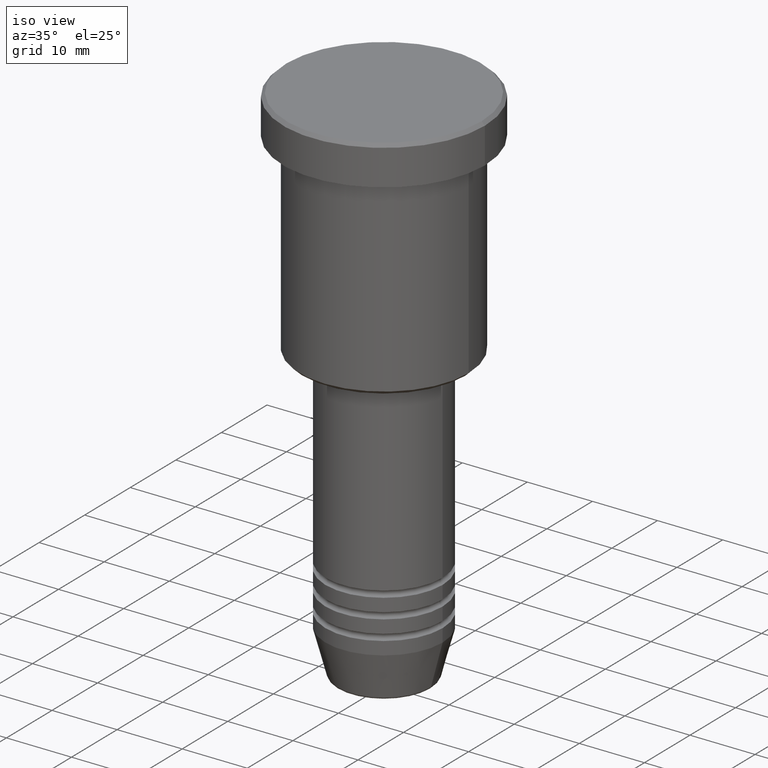
[diagram: clean part render]
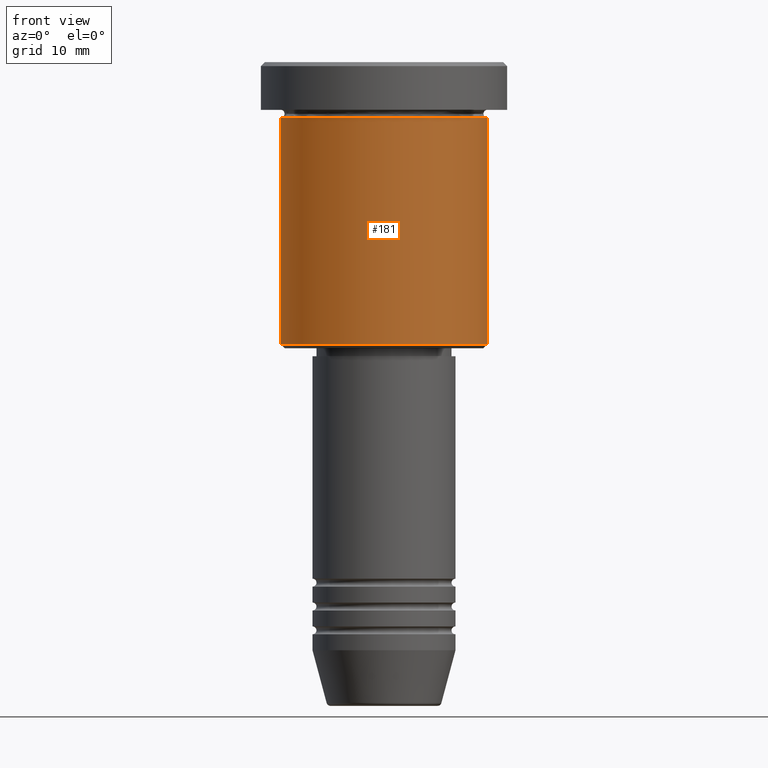
[diagram: tour spotlight — one face highlighted and labeled with its STEP entity id]
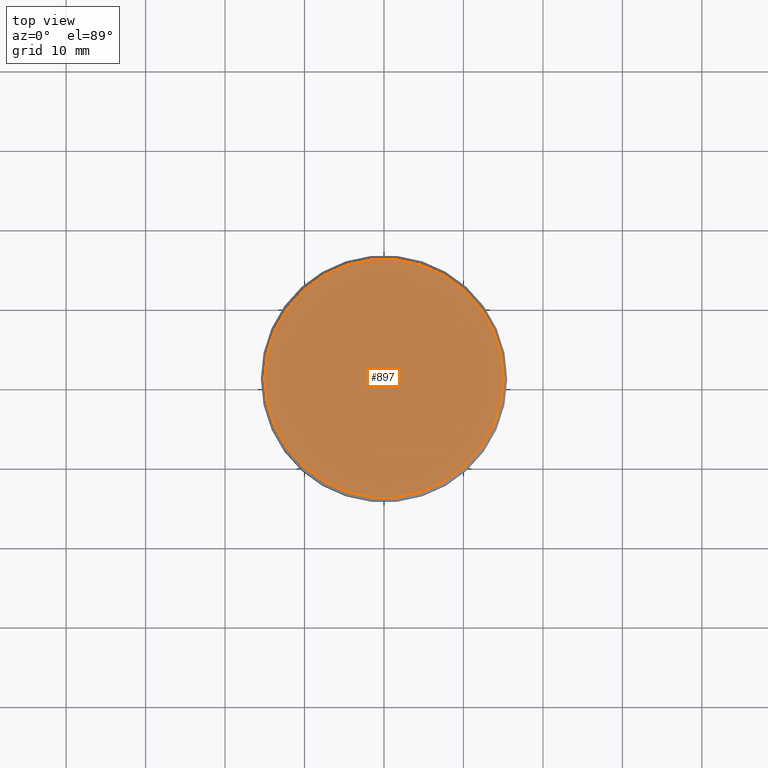
[diagram: tour spotlight — one face highlighted and labeled with its STEP entity id]
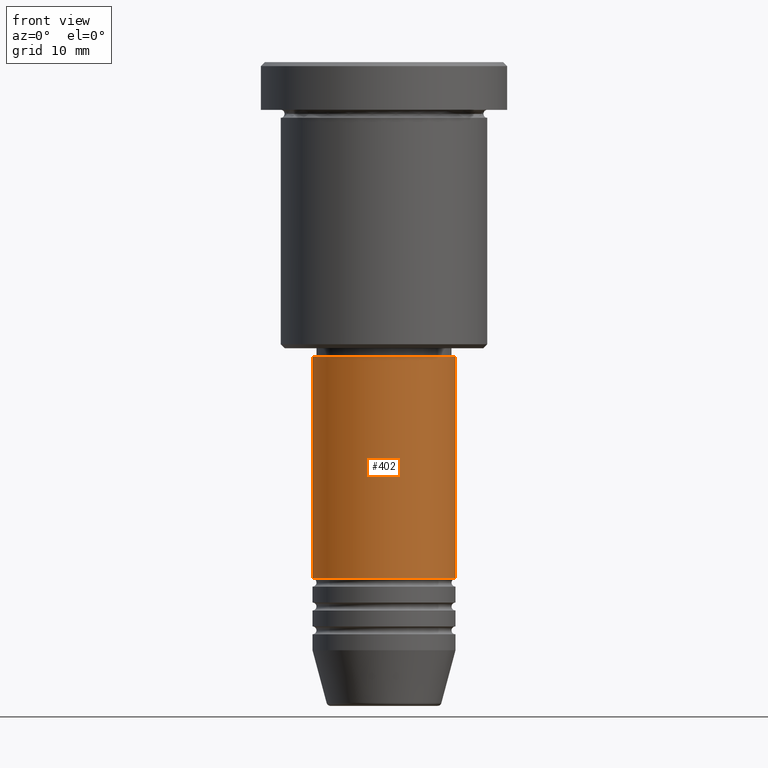
[diagram: tour spotlight — one face highlighted and labeled with its STEP entity id]
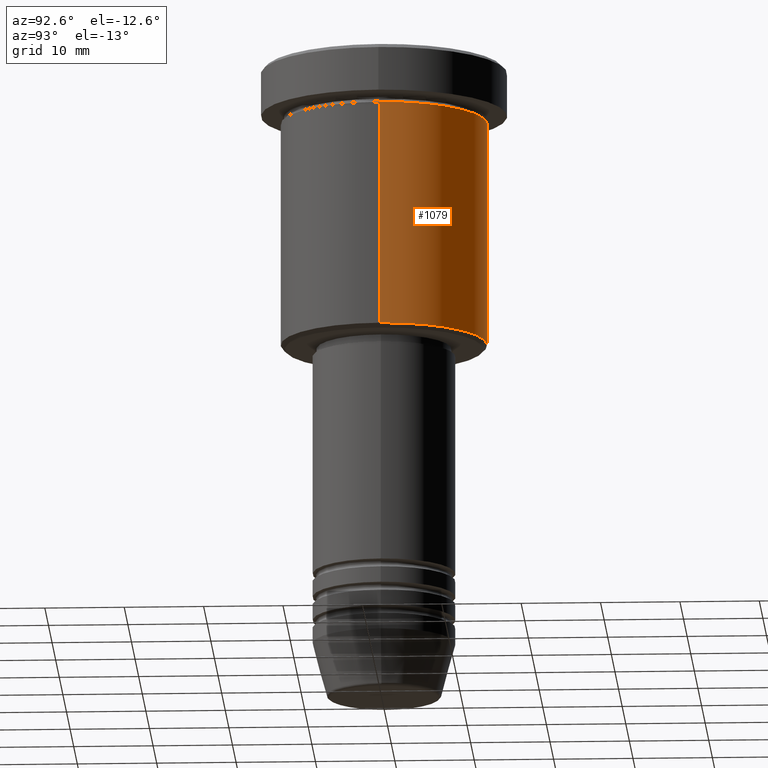
[diagram: tour spotlight — one face highlighted and labeled with its STEP entity id]
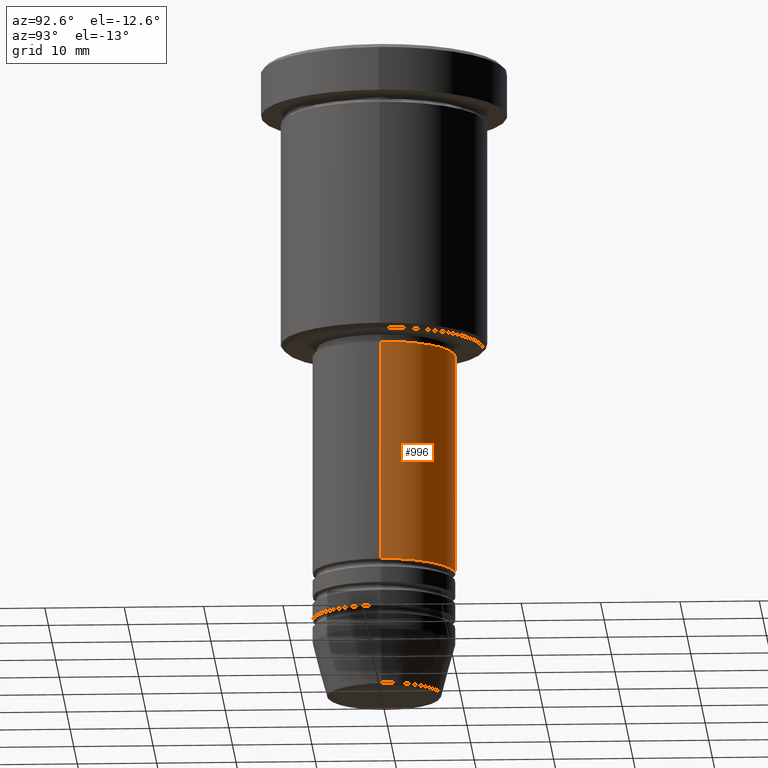
[diagram: tour spotlight — one face highlighted and labeled with its STEP entity id]
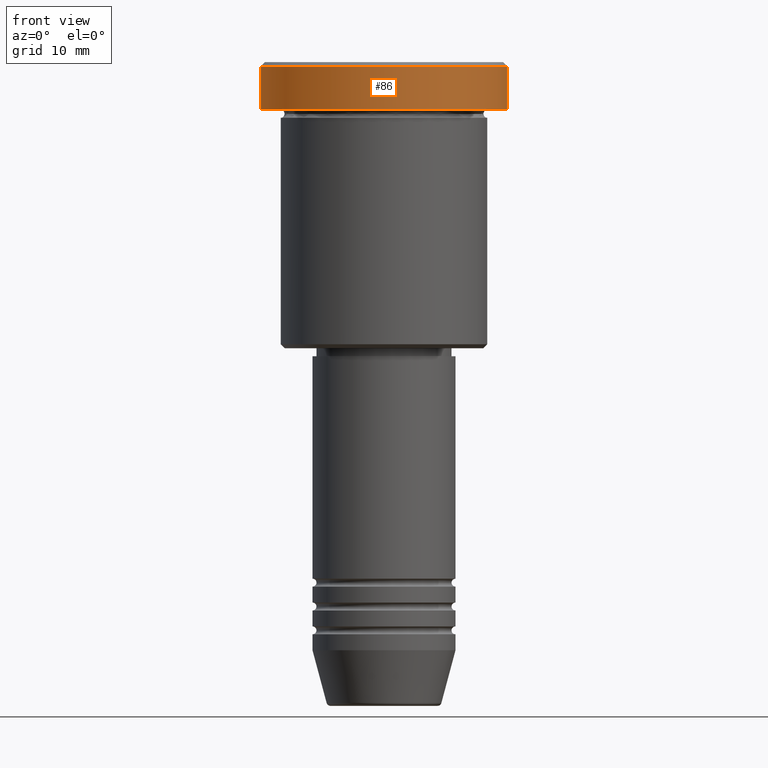
[diagram: tour spotlight — one face highlighted and labeled with its STEP entity id]
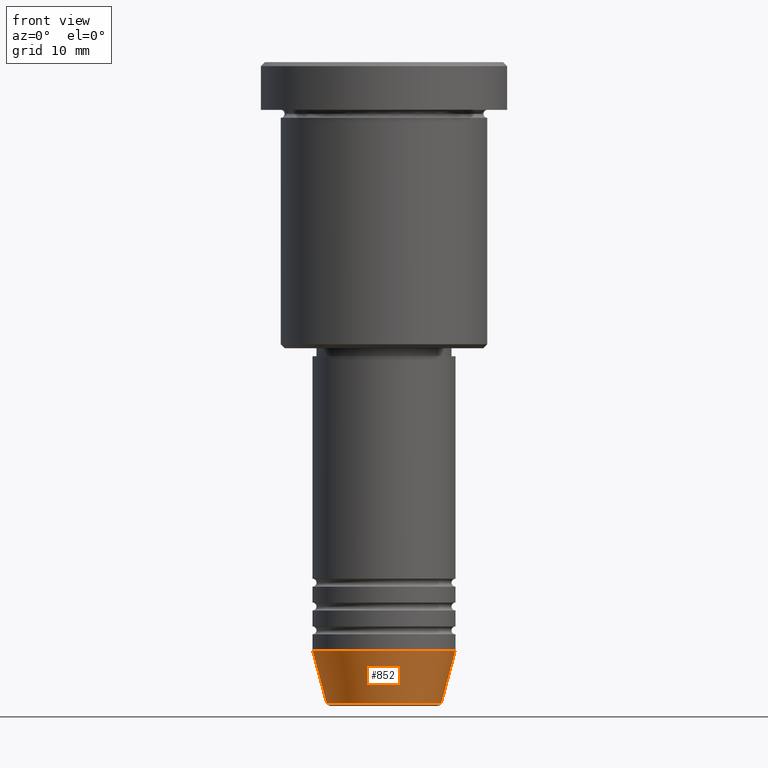
[diagram: tour spotlight — one face highlighted and labeled with its STEP entity id]
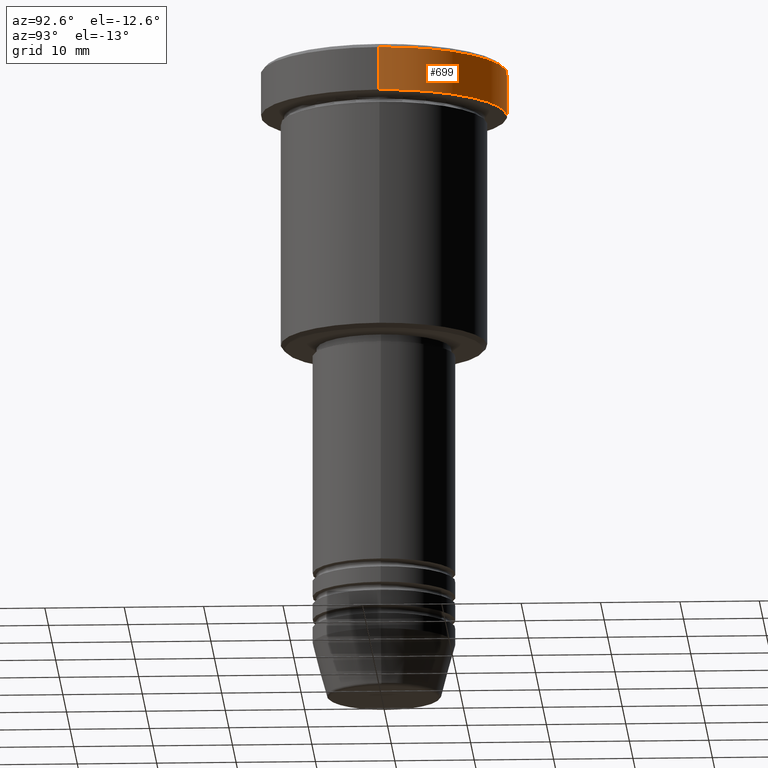
[diagram: tour spotlight — one face highlighted and labeled with its STEP entity id]
A machine part: a face-by-face anatomy tour. The part has 43 B-rep faces; the first image is the clean iso view, then the 8 largest visible faces are spotlighted one at a time (largest first), each with its STEP entity span.

Face 1 — front view, entity #181. In plain terms, the highlighted cylindrical surface (partial cylindrical patch) has radius 13 mm, axis along (-0, -0, 1).
Definition (entity closure, byte-faithful):
#27 = CARTESIAN_POINT ( 'NONE',  ( 13.00000000000000000, 0.000000000000000000, 0.000000000000000000 ) ) ;
#32 = CARTESIAN_POINT ( 'NONE',  ( 0.000000000000000000, 0.000000000000000000, -6.999999999999995559 ) ) ;
#54 = ORIENTED_EDGE ( 'NONE', *, *, #697, .F. ) ;
#58 = VERTEX_POINT ( 'NONE', #975 ) ;
#90 = DIRECTION ( 'NONE',  ( -0.000000000000000000, -0.000000000000000000, 1.000000000000000000 ) ) ;
#181 = ADVANCED_FACE ( 'NONE', ( #995 ), #670, .T. ) ;
#191 = EDGE_CURVE ( 'NONE', #58, #452, #549, .T. ) ;
#205 = DIRECTION ( 'NONE',  ( 1.000000000000000000, 0.000000000000000000, 0.000000000000000000 ) ) ;
#230 = DIRECTION ( 'NONE',  ( 1.000000000000000000, 0.000000000000000000, 0.000000000000000000 ) ) ;
#248 = CIRCLE ( 'NONE', #1093, 13.00000000000000000 ) ;
#268 = CARTESIAN_POINT ( 'NONE',  ( -13.00000000000000000, 1.592040838891559095E-15, -6.999999999999995559 ) ) ;
#272 = VECTOR ( 'NONE', #386, 1000.000000000000000 ) ;
#278 = AXIS2_PLACEMENT_3D ( 'NONE', #32, #1112, #230 ) ;
#281 = VERTEX_POINT ( 'NONE', #910 ) ;
#289 = EDGE_CURVE ( 'NONE', #58, #281, #248, .T. ) ;
#320 = EDGE_CURVE ( 'NONE', #281, #563, #380, .T. ) ;
#369 = CARTESIAN_POINT ( 'NONE',  ( 0.000000000000000000, 0.000000000000000000, -35.49999999999998579 ) ) ;
#380 = LINE ( 'NONE', #27, #272 ) ;
#386 = DIRECTION ( 'NONE',  ( -0.000000000000000000, -0.000000000000000000, 1.000000000000000000 ) ) ;
#396 = ORIENTED_EDGE ( 'NONE', *, *, #289, .T. ) ;
#400 = CARTESIAN_POINT ( 'NONE',  ( 0.000000000000000000, 0.000000000000000000, 0.000000000000000000 ) ) ;
#452 = VERTEX_POINT ( 'NONE', #268 ) ;
#456 = DIRECTION ( 'NONE',  ( -1.000000000000000000, 0.000000000000000000, 0.000000000000000000 ) ) ;
#468 = DIRECTION ( 'NONE',  ( -0.000000000000000000, -0.000000000000000000, 1.000000000000000000 ) ) ;
#488 = DIRECTION ( 'NONE',  ( -0.000000000000000000, -0.000000000000000000, 1.000000000000000000 ) ) ;
#535 = CIRCLE ( 'NONE', #278, 13.00000000000000000 ) ;
#549 = LINE ( 'NONE', #857, #623 ) ;
#563 = VERTEX_POINT ( 'NONE', #1000 ) ;
#623 = VECTOR ( 'NONE', #488, 1000.000000000000000 ) ;
#626 = ORIENTED_EDGE ( 'NONE', *, *, #320, .T. ) ;
#670 = CYLINDRICAL_SURFACE ( 'NONE', #683, 13.00000000000000000 ) ;
#683 = AXIS2_PLACEMENT_3D ( 'NONE', #400, #468, #205 ) ;
#691 = ORIENTED_EDGE ( 'NONE', *, *, #191, .F. ) ;
#697 = EDGE_CURVE ( 'NONE', #452, #563, #535, .T. ) ;
#765 = EDGE_LOOP ( 'NONE', ( #691, #396, #626, #54 ) ) ;
#857 = CARTESIAN_POINT ( 'NONE',  ( -13.00000000000000000, 1.592040838891559095E-15, 0.000000000000000000 ) ) ;
#910 = CARTESIAN_POINT ( 'NONE',  ( 13.00000000000000000, 0.000000000000000000, -35.49999999999998579 ) ) ;
#975 = CARTESIAN_POINT ( 'NONE',  ( -13.00000000000000000, 1.592040838891559095E-15, -35.49999999999998579 ) ) ;
#995 = FACE_OUTER_BOUND ( 'NONE', #765, .T. ) ;
#1000 = CARTESIAN_POINT ( 'NONE',  ( 13.00000000000000000, 0.000000000000000000, -6.999999999999995559 ) ) ;
#1093 = AXIS2_PLACEMENT_3D ( 'NONE', #369, #90, #456 ) ;
#1112 = DIRECTION ( 'NONE',  ( -0.000000000000000000, -0.000000000000000000, 1.000000000000000000 ) ) ;

Face 2 — top view, entity #897. In plain terms, the highlighted planar face has unit normal (0, -0, 1).
Definition (entity closure, byte-faithful):
#20 = AXIS2_PLACEMENT_3D ( 'NONE', #506, #315, #681 ) ;
#34 = DIRECTION ( 'NONE',  ( 1.000000000000000000, 0.000000000000000000, 0.000000000000000000 ) ) ;
#67 = CARTESIAN_POINT ( 'NONE',  ( 0.000000000000000000, 0.000000000000000000, 0.000000000000000000 ) ) ;
#151 = CIRCLE ( 'NONE', #20, 14.99999999999998579 ) ;
#174 = CARTESIAN_POINT ( 'NONE',  ( 14.99999999999998579, 1.867586368699712587E-15, 0.000000000000000000 ) ) ;
#218 = VERTEX_POINT ( 'NONE', #844 ) ;
#220 = AXIS2_PLACEMENT_3D ( 'NONE', #982, #590, #34 ) ;
#315 = DIRECTION ( 'NONE',  ( -0.000000000000000000, -0.000000000000000000, 1.000000000000000000 ) ) ;
#316 = EDGE_LOOP ( 'NONE', ( #544, #981 ) ) ;
#372 = PLANE ( 'NONE',  #220 ) ;
#387 = EDGE_CURVE ( 'NONE', #1167, #218, #151, .T. ) ;
#389 = FACE_OUTER_BOUND ( 'NONE', #316, .T. ) ;
#506 = CARTESIAN_POINT ( 'NONE',  ( 0.000000000000000000, 0.000000000000000000, 0.000000000000000000 ) ) ;
#544 = ORIENTED_EDGE ( 'NONE', *, *, #834, .T. ) ;
#590 = DIRECTION ( 'NONE',  ( 0.000000000000000000, -0.000000000000000000, 1.000000000000000000 ) ) ;
#681 = DIRECTION ( 'NONE',  ( 1.000000000000000000, 0.000000000000000000, 0.000000000000000000 ) ) ;
#713 = DIRECTION ( 'NONE',  ( 1.000000000000000000, 0.000000000000000000, 0.000000000000000000 ) ) ;
#834 = EDGE_CURVE ( 'NONE', #218, #1167, #907, .T. ) ;
#844 = CARTESIAN_POINT ( 'NONE',  ( -14.99999999999998579, 0.000000000000000000, 0.000000000000000000 ) ) ;
#897 = ADVANCED_FACE ( 'NONE', ( #389 ), #372, .T. ) ;
#907 = CIRCLE ( 'NONE', #1136, 14.99999999999998579 ) ;
#981 = ORIENTED_EDGE ( 'NONE', *, *, #387, .T. ) ;
#982 = CARTESIAN_POINT ( 'NONE',  ( 0.000000000000000000, 0.000000000000000000, 0.000000000000000000 ) ) ;
#1136 = AXIS2_PLACEMENT_3D ( 'NONE', #67, #1166, #713 ) ;
#1166 = DIRECTION ( 'NONE',  ( -0.000000000000000000, -0.000000000000000000, 1.000000000000000000 ) ) ;
#1167 = VERTEX_POINT ( 'NONE', #174 ) ;

Face 3 — front view, entity #402. In plain terms, the highlighted cylindrical surface (partial cylindrical patch) has radius 9 mm, axis along (-0, -0, 1).
Definition (entity closure, byte-faithful):
#37 = DIRECTION ( 'NONE',  ( -0.000000000000000000, -0.000000000000000000, 1.000000000000000000 ) ) ;
#75 = CARTESIAN_POINT ( 'NONE',  ( 0.000000000000000000, 0.000000000000000000, 0.000000000000000000 ) ) ;
#97 = CARTESIAN_POINT ( 'NONE',  ( 0.000000000000000000, 0.000000000000000000, -37.00000000000000711 ) ) ;
#122 = DIRECTION ( 'NONE',  ( -0.000000000000000000, -0.000000000000000000, 1.000000000000000000 ) ) ;
#148 = CARTESIAN_POINT ( 'NONE',  ( -9.000000000000000000, 1.102182119232617714E-15, -64.99999999999997158 ) ) ;
#223 = EDGE_CURVE ( 'NONE', #599, #419, #568, .T. ) ;
#260 = DIRECTION ( 'NONE',  ( 1.000000000000000000, 0.000000000000000000, 0.000000000000000000 ) ) ;
#299 = CARTESIAN_POINT ( 'NONE',  ( 9.000000000000000000, 0.000000000000000000, 0.000000000000000000 ) ) ;
#314 = EDGE_CURVE ( 'NONE', #1021, #419, #625, .T. ) ;
#319 = FACE_OUTER_BOUND ( 'NONE', #362, .T. ) ;
#337 = ORIENTED_EDGE ( 'NONE', *, *, #431, .T. ) ;
#343 = VERTEX_POINT ( 'NONE', #148 ) ;
#362 = EDGE_LOOP ( 'NONE', ( #409, #337, #687, #1146 ) ) ;
#402 = ADVANCED_FACE ( 'NONE', ( #319 ), #618, .T. ) ;
#409 = ORIENTED_EDGE ( 'NONE', *, *, #653, .F. ) ;
#419 = VERTEX_POINT ( 'NONE', #1181 ) ;
#422 = CARTESIAN_POINT ( 'NONE',  ( -9.000000000000000000, 1.102182119232617714E-15, -37.00000000000000711 ) ) ;
#431 = EDGE_CURVE ( 'NONE', #343, #599, #453, .T. ) ;
#453 = CIRCLE ( 'NONE', #902, 9.000000000000000000 ) ;
#568 = LINE ( 'NONE', #299, #1004 ) ;
#599 = VERTEX_POINT ( 'NONE', #755 ) ;
#618 = CYLINDRICAL_SURFACE ( 'NONE', #1143, 9.000000000000000000 ) ;
#625 = CIRCLE ( 'NONE', #787, 9.000000000000000000 ) ;
#636 = DIRECTION ( 'NONE',  ( -0.000000000000000000, -0.000000000000000000, 1.000000000000000000 ) ) ;
#653 = EDGE_CURVE ( 'NONE', #343, #1021, #1134, .T. ) ;
#687 = ORIENTED_EDGE ( 'NONE', *, *, #223, .T. ) ;
#703 = DIRECTION ( 'NONE',  ( -0.000000000000000000, -0.000000000000000000, 1.000000000000000000 ) ) ;
#735 = CARTESIAN_POINT ( 'NONE',  ( 0.000000000000000000, 0.000000000000000000, -64.99999999999997158 ) ) ;
#755 = CARTESIAN_POINT ( 'NONE',  ( 9.000000000000000000, 0.000000000000000000, -64.99999999999997158 ) ) ;
#775 = VECTOR ( 'NONE', #37, 1000.000000000000000 ) ;
#787 = AXIS2_PLACEMENT_3D ( 'NONE', #97, #1025, #938 ) ;
#902 = AXIS2_PLACEMENT_3D ( 'NONE', #735, #636, #260 ) ;
#938 = DIRECTION ( 'NONE',  ( 1.000000000000000000, 0.000000000000000000, 0.000000000000000000 ) ) ;
#1004 = VECTOR ( 'NONE', #122, 1000.000000000000000 ) ;
#1021 = VERTEX_POINT ( 'NONE', #422 ) ;
#1025 = DIRECTION ( 'NONE',  ( -0.000000000000000000, -0.000000000000000000, 1.000000000000000000 ) ) ;
#1092 = DIRECTION ( 'NONE',  ( 1.000000000000000000, 0.000000000000000000, 0.000000000000000000 ) ) ;
#1124 = CARTESIAN_POINT ( 'NONE',  ( -9.000000000000000000, 1.102182119232617714E-15, 0.000000000000000000 ) ) ;
#1134 = LINE ( 'NONE', #1124, #775 ) ;
#1143 = AXIS2_PLACEMENT_3D ( 'NONE', #75, #703, #1092 ) ;
#1146 = ORIENTED_EDGE ( 'NONE', *, *, #314, .F. ) ;
#1181 = CARTESIAN_POINT ( 'NONE',  ( 9.000000000000000000, 0.000000000000000000, -37.00000000000000711 ) ) ;

Face 4 — auxiliary view, entity #1079. In plain terms, the highlighted cylindrical surface (partial cylindrical patch) has radius 13 mm, axis along (-0, -0, 1).
Definition (entity closure, byte-faithful):
#27 = CARTESIAN_POINT ( 'NONE',  ( 13.00000000000000000, 0.000000000000000000, 0.000000000000000000 ) ) ;
#58 = VERTEX_POINT ( 'NONE', #975 ) ;
#78 = DIRECTION ( 'NONE',  ( -0.000000000000000000, -0.000000000000000000, 1.000000000000000000 ) ) ;
#163 = ORIENTED_EDGE ( 'NONE', *, *, #580, .T. ) ;
#191 = EDGE_CURVE ( 'NONE', #58, #452, #549, .T. ) ;
#203 = DIRECTION ( 'NONE',  ( -0.000000000000000000, -0.000000000000000000, 1.000000000000000000 ) ) ;
#268 = CARTESIAN_POINT ( 'NONE',  ( -13.00000000000000000, 1.592040838891559095E-15, -6.999999999999995559 ) ) ;
#272 = VECTOR ( 'NONE', #386, 1000.000000000000000 ) ;
#281 = VERTEX_POINT ( 'NONE', #910 ) ;
#285 = ORIENTED_EDGE ( 'NONE', *, *, #944, .F. ) ;
#320 = EDGE_CURVE ( 'NONE', #281, #563, #380, .T. ) ;
#354 = DIRECTION ( 'NONE',  ( 1.000000000000000000, 0.000000000000000000, 0.000000000000000000 ) ) ;
#358 = ORIENTED_EDGE ( 'NONE', *, *, #191, .T. ) ;
#377 = CARTESIAN_POINT ( 'NONE',  ( 0.000000000000000000, 0.000000000000000000, 0.000000000000000000 ) ) ;
#380 = LINE ( 'NONE', #27, #272 ) ;
#386 = DIRECTION ( 'NONE',  ( -0.000000000000000000, -0.000000000000000000, 1.000000000000000000 ) ) ;
#390 = CIRCLE ( 'NONE', #837, 13.00000000000000000 ) ;
#432 = DIRECTION ( 'NONE',  ( 1.000000000000000000, 0.000000000000000000, 0.000000000000000000 ) ) ;
#437 = DIRECTION ( 'NONE',  ( -1.000000000000000000, 0.000000000000000000, 0.000000000000000000 ) ) ;
#452 = VERTEX_POINT ( 'NONE', #268 ) ;
#488 = DIRECTION ( 'NONE',  ( -0.000000000000000000, -0.000000000000000000, 1.000000000000000000 ) ) ;
#515 = AXIS2_PLACEMENT_3D ( 'NONE', #1162, #900, #437 ) ;
#549 = LINE ( 'NONE', #857, #623 ) ;
#563 = VERTEX_POINT ( 'NONE', #1000 ) ;
#580 = EDGE_CURVE ( 'NONE', #281, #58, #1078, .T. ) ;
#606 = ORIENTED_EDGE ( 'NONE', *, *, #320, .F. ) ;
#608 = CARTESIAN_POINT ( 'NONE',  ( 0.000000000000000000, 0.000000000000000000, -6.999999999999995559 ) ) ;
#623 = VECTOR ( 'NONE', #488, 1000.000000000000000 ) ;
#642 = CYLINDRICAL_SURFACE ( 'NONE', #860, 13.00000000000000000 ) ;
#837 = AXIS2_PLACEMENT_3D ( 'NONE', #608, #78, #432 ) ;
#842 = FACE_OUTER_BOUND ( 'NONE', #1147, .T. ) ;
#857 = CARTESIAN_POINT ( 'NONE',  ( -13.00000000000000000, 1.592040838891559095E-15, 0.000000000000000000 ) ) ;
#860 = AXIS2_PLACEMENT_3D ( 'NONE', #377, #203, #354 ) ;
#900 = DIRECTION ( 'NONE',  ( -0.000000000000000000, -0.000000000000000000, 1.000000000000000000 ) ) ;
#910 = CARTESIAN_POINT ( 'NONE',  ( 13.00000000000000000, 0.000000000000000000, -35.49999999999998579 ) ) ;
#944 = EDGE_CURVE ( 'NONE', #563, #452, #390, .T. ) ;
#975 = CARTESIAN_POINT ( 'NONE',  ( -13.00000000000000000, 1.592040838891559095E-15, -35.49999999999998579 ) ) ;
#1000 = CARTESIAN_POINT ( 'NONE',  ( 13.00000000000000000, 0.000000000000000000, -6.999999999999995559 ) ) ;
#1078 = CIRCLE ( 'NONE', #515, 13.00000000000000000 ) ;
#1079 = ADVANCED_FACE ( 'NONE', ( #842 ), #642, .T. ) ;
#1147 = EDGE_LOOP ( 'NONE', ( #163, #358, #285, #606 ) ) ;
#1162 = CARTESIAN_POINT ( 'NONE',  ( 0.000000000000000000, 0.000000000000000000, -35.49999999999998579 ) ) ;

Face 5 — auxiliary view, entity #996. In plain terms, the highlighted cylindrical surface (partial cylindrical patch) has radius 9 mm, axis along (-0, -0, 1).
Definition (entity closure, byte-faithful):
#37 = DIRECTION ( 'NONE',  ( -0.000000000000000000, -0.000000000000000000, 1.000000000000000000 ) ) ;
#68 = ORIENTED_EDGE ( 'NONE', *, *, #524, .T. ) ;
#122 = DIRECTION ( 'NONE',  ( -0.000000000000000000, -0.000000000000000000, 1.000000000000000000 ) ) ;
#148 = CARTESIAN_POINT ( 'NONE',  ( -9.000000000000000000, 1.102182119232617714E-15, -64.99999999999997158 ) ) ;
#223 = EDGE_CURVE ( 'NONE', #599, #419, #568, .T. ) ;
#240 = CARTESIAN_POINT ( 'NONE',  ( 0.000000000000000000, 0.000000000000000000, 0.000000000000000000 ) ) ;
#258 = CARTESIAN_POINT ( 'NONE',  ( 0.000000000000000000, 0.000000000000000000, -37.00000000000000711 ) ) ;
#261 = AXIS2_PLACEMENT_3D ( 'NONE', #258, #1062, #972 ) ;
#299 = CARTESIAN_POINT ( 'NONE',  ( 9.000000000000000000, 0.000000000000000000, 0.000000000000000000 ) ) ;
#331 = CYLINDRICAL_SURFACE ( 'NONE', #463, 9.000000000000000000 ) ;
#343 = VERTEX_POINT ( 'NONE', #148 ) ;
#353 = DIRECTION ( 'NONE',  ( -0.000000000000000000, -0.000000000000000000, 1.000000000000000000 ) ) ;
#419 = VERTEX_POINT ( 'NONE', #1181 ) ;
#422 = CARTESIAN_POINT ( 'NONE',  ( -9.000000000000000000, 1.102182119232617714E-15, -37.00000000000000711 ) ) ;
#463 = AXIS2_PLACEMENT_3D ( 'NONE', #240, #622, #600 ) ;
#524 = EDGE_CURVE ( 'NONE', #599, #343, #1149, .T. ) ;
#553 = AXIS2_PLACEMENT_3D ( 'NONE', #708, #353, #820 ) ;
#568 = LINE ( 'NONE', #299, #1004 ) ;
#599 = VERTEX_POINT ( 'NONE', #755 ) ;
#600 = DIRECTION ( 'NONE',  ( 1.000000000000000000, 0.000000000000000000, 0.000000000000000000 ) ) ;
#622 = DIRECTION ( 'NONE',  ( -0.000000000000000000, -0.000000000000000000, 1.000000000000000000 ) ) ;
#653 = EDGE_CURVE ( 'NONE', #343, #1021, #1134, .T. ) ;
#688 = ORIENTED_EDGE ( 'NONE', *, *, #997, .F. ) ;
#708 = CARTESIAN_POINT ( 'NONE',  ( 0.000000000000000000, 0.000000000000000000, -64.99999999999997158 ) ) ;
#755 = CARTESIAN_POINT ( 'NONE',  ( 9.000000000000000000, 0.000000000000000000, -64.99999999999997158 ) ) ;
#775 = VECTOR ( 'NONE', #37, 1000.000000000000000 ) ;
#820 = DIRECTION ( 'NONE',  ( 1.000000000000000000, 0.000000000000000000, 0.000000000000000000 ) ) ;
#954 = EDGE_LOOP ( 'NONE', ( #68, #1104, #688, #1007 ) ) ;
#972 = DIRECTION ( 'NONE',  ( 1.000000000000000000, 0.000000000000000000, 0.000000000000000000 ) ) ;
#988 = CIRCLE ( 'NONE', #261, 9.000000000000000000 ) ;
#996 = ADVANCED_FACE ( 'NONE', ( #1163 ), #331, .T. ) ;
#997 = EDGE_CURVE ( 'NONE', #419, #1021, #988, .T. ) ;
#1004 = VECTOR ( 'NONE', #122, 1000.000000000000000 ) ;
#1007 = ORIENTED_EDGE ( 'NONE', *, *, #223, .F. ) ;
#1021 = VERTEX_POINT ( 'NONE', #422 ) ;
#1062 = DIRECTION ( 'NONE',  ( -0.000000000000000000, -0.000000000000000000, 1.000000000000000000 ) ) ;
#1104 = ORIENTED_EDGE ( 'NONE', *, *, #653, .T. ) ;
#1124 = CARTESIAN_POINT ( 'NONE',  ( -9.000000000000000000, 1.102182119232617714E-15, 0.000000000000000000 ) ) ;
#1134 = LINE ( 'NONE', #1124, #775 ) ;
#1149 = CIRCLE ( 'NONE', #553, 9.000000000000000000 ) ;
#1163 = FACE_OUTER_BOUND ( 'NONE', #954, .T. ) ;
#1181 = CARTESIAN_POINT ( 'NONE',  ( 9.000000000000000000, 0.000000000000000000, -37.00000000000000711 ) ) ;

Face 6 — front view, entity #86. In plain terms, the highlighted cylindrical surface (partial cylindrical patch) has radius 15.5 mm, axis along (-0, -0, 1).
Definition (entity closure, byte-faithful):
#6 = CARTESIAN_POINT ( 'NONE',  ( 15.50000000000000000, 0.000000000000000000, -0.5000000000000125455 ) ) ;
#15 = ORIENTED_EDGE ( 'NONE', *, *, #105, .T. ) ;
#26 = DIRECTION ( 'NONE',  ( -0.000000000000000000, -0.000000000000000000, 1.000000000000000000 ) ) ;
#53 = CARTESIAN_POINT ( 'NONE',  ( 15.50000000000000000, 0.000000000000000000, 0.000000000000000000 ) ) ;
#86 = ADVANCED_FACE ( 'NONE', ( #800 ), #430, .T. ) ;
#105 = EDGE_CURVE ( 'NONE', #1061, #455, #532, .T. ) ;
#217 = DIRECTION ( 'NONE',  ( 1.000000000000000000, 0.000000000000000000, 0.000000000000000000 ) ) ;
#243 = CARTESIAN_POINT ( 'NONE',  ( 0.000000000000000000, 0.000000000000000000, -0.5000000000000125455 ) ) ;
#266 = CARTESIAN_POINT ( 'NONE',  ( -15.50000000000000000, 1.898202538678397557E-15, -5.999999999999995559 ) ) ;
#326 = VERTEX_POINT ( 'NONE', #1119 ) ;
#346 = EDGE_CURVE ( 'NONE', #326, #1061, #966, .T. ) ;
#371 = ORIENTED_EDGE ( 'NONE', *, *, #746, .T. ) ;
#410 = CARTESIAN_POINT ( 'NONE',  ( -15.50000000000000000, 1.898202538678397557E-15, -0.5000000000000125455 ) ) ;
#414 = EDGE_CURVE ( 'NONE', #1017, #455, #1164, .T. ) ;
#430 = CYLINDRICAL_SURFACE ( 'NONE', #1024, 15.50000000000000000 ) ;
#447 = DIRECTION ( 'NONE',  ( -0.000000000000000000, -0.000000000000000000, 1.000000000000000000 ) ) ;
#455 = VERTEX_POINT ( 'NONE', #410 ) ;
#478 = AXIS2_PLACEMENT_3D ( 'NONE', #243, #1022, #848 ) ;
#514 = DIRECTION ( 'NONE',  ( 1.000000000000000000, 0.000000000000000000, 0.000000000000000000 ) ) ;
#532 = CIRCLE ( 'NONE', #478, 15.50000000000000000 ) ;
#545 = VECTOR ( 'NONE', #1137, 1000.000000000000000 ) ;
#551 = EDGE_LOOP ( 'NONE', ( #715, #371, #1019, #15 ) ) ;
#588 = CARTESIAN_POINT ( 'NONE',  ( 0.000000000000000000, 0.000000000000000000, -5.999999999999995559 ) ) ;
#669 = VECTOR ( 'NONE', #447, 1000.000000000000000 ) ;
#693 = DIRECTION ( 'NONE',  ( -0.000000000000000000, -0.000000000000000000, 1.000000000000000000 ) ) ;
#711 = CARTESIAN_POINT ( 'NONE',  ( -15.50000000000000000, 1.898202538678397557E-15, 0.000000000000000000 ) ) ;
#715 = ORIENTED_EDGE ( 'NONE', *, *, #414, .F. ) ;
#746 = EDGE_CURVE ( 'NONE', #1017, #326, #836, .T. ) ;
#800 = FACE_OUTER_BOUND ( 'NONE', #551, .T. ) ;
#836 = CIRCLE ( 'NONE', #1170, 15.50000000000000000 ) ;
#848 = DIRECTION ( 'NONE',  ( 1.000000000000000000, 0.000000000000000000, 0.000000000000000000 ) ) ;
#966 = LINE ( 'NONE', #53, #545 ) ;
#1017 = VERTEX_POINT ( 'NONE', #266 ) ;
#1019 = ORIENTED_EDGE ( 'NONE', *, *, #346, .T. ) ;
#1022 = DIRECTION ( 'NONE',  ( 0.000000000000000000, 0.000000000000000000, -1.000000000000000000 ) ) ;
#1024 = AXIS2_PLACEMENT_3D ( 'NONE', #1068, #693, #514 ) ;
#1061 = VERTEX_POINT ( 'NONE', #6 ) ;
#1068 = CARTESIAN_POINT ( 'NONE',  ( 0.000000000000000000, 0.000000000000000000, 0.000000000000000000 ) ) ;
#1119 = CARTESIAN_POINT ( 'NONE',  ( 15.50000000000000000, 0.000000000000000000, -5.999999999999995559 ) ) ;
#1137 = DIRECTION ( 'NONE',  ( -0.000000000000000000, -0.000000000000000000, 1.000000000000000000 ) ) ;
#1164 = LINE ( 'NONE', #711, #669 ) ;
#1170 = AXIS2_PLACEMENT_3D ( 'NONE', #588, #26, #217 ) ;

Face 7 — front view, entity #852. In plain terms, the highlighted conical surface has half-angle 15 deg.
Definition (entity closure, byte-faithful):
#9 = ORIENTED_EDGE ( 'NONE', *, *, #520, .F. ) ;
#13 = LINE ( 'NONE', #454, #594 ) ;
#77 = CARTESIAN_POINT ( 'NONE',  ( 0.000000000000000000, 0.000000000000000000, -74.00000000000000000 ) ) ;
#125 = ORIENTED_EDGE ( 'NONE', *, *, #366, .T. ) ;
#137 = DIRECTION ( 'NONE',  ( -0.000000000000000000, -0.000000000000000000, 1.000000000000000000 ) ) ;
#169 = CIRCLE ( 'NONE', #321, 9.000000000000000000 ) ;
#190 = AXIS2_PLACEMENT_3D ( 'NONE', #416, #512, #241 ) ;
#195 = DIRECTION ( 'NONE',  ( -0.2588190451025213501, 3.169619151431772337E-17, 0.9659258262890680902 ) ) ;
#241 = DIRECTION ( 'NONE',  ( 1.000000000000000000, 0.000000000000000000, 0.000000000000000000 ) ) ;
#246 = FACE_OUTER_BOUND ( 'NONE', #570, .T. ) ;
#273 = DIRECTION ( 'NONE',  ( 0.2588190451025213501, 0.000000000000000000, 0.9659258262890680902 ) ) ;
#321 = AXIS2_PLACEMENT_3D ( 'NONE', #77, #1173, #908 ) ;
#366 = EDGE_CURVE ( 'NONE', #1126, #1160, #704, .T. ) ;
#416 = CARTESIAN_POINT ( 'NONE',  ( 0.000000000000000000, 0.000000000000000000, -80.62940952255124216 ) ) ;
#448 = VERTEX_POINT ( 'NONE', #541 ) ;
#454 = CARTESIAN_POINT ( 'NONE',  ( 9.000000000000000000, 0.000000000000000000, -74.00000000000000000 ) ) ;
#512 = DIRECTION ( 'NONE',  ( -0.000000000000000000, -0.000000000000000000, 1.000000000000000000 ) ) ;
#520 = EDGE_CURVE ( 'NONE', #946, #448, #169, .T. ) ;
#541 = CARTESIAN_POINT ( 'NONE',  ( 9.000000000000000000, 0.000000000000000000, -74.00000000000000000 ) ) ;
#570 = EDGE_LOOP ( 'NONE', ( #840, #125, #881, #9 ) ) ;
#594 = VECTOR ( 'NONE', #273, 1000.000000000000000 ) ;
#602 = CARTESIAN_POINT ( 'NONE',  ( 0.000000000000000000, 0.000000000000000000, -74.00000000000000000 ) ) ;
#614 = CONICAL_SURFACE ( 'NONE', #777, 9.000000000000000000, 0.2617993877991500740 ) ;
#704 = CIRCLE ( 'NONE', #190, 7.223655072137193045 ) ;
#729 = CARTESIAN_POINT ( 'NONE',  ( 7.223655072137193045, 0.000000000000000000, -80.62940952255124216 ) ) ;
#750 = CARTESIAN_POINT ( 'NONE',  ( -7.223655072137193045, 9.934123627281767082E-16, -80.62940952255124216 ) ) ;
#759 = VECTOR ( 'NONE', #195, 1000.000000000000000 ) ;
#777 = AXIS2_PLACEMENT_3D ( 'NONE', #602, #137, #1155 ) ;
#802 = CARTESIAN_POINT ( 'NONE',  ( -9.000000000000000000, 1.102182119232617714E-15, -74.00000000000000000 ) ) ;
#840 = ORIENTED_EDGE ( 'NONE', *, *, #1075, .F. ) ;
#852 = ADVANCED_FACE ( 'NONE', ( #246 ), #614, .T. ) ;
#881 = ORIENTED_EDGE ( 'NONE', *, *, #1177, .T. ) ;
#908 = DIRECTION ( 'NONE',  ( 1.000000000000000000, 0.000000000000000000, 0.000000000000000000 ) ) ;
#913 = CARTESIAN_POINT ( 'NONE',  ( -9.000000000000000000, 1.102182119232617714E-15, -74.00000000000000000 ) ) ;
#946 = VERTEX_POINT ( 'NONE', #802 ) ;
#1075 = EDGE_CURVE ( 'NONE', #1126, #946, #1102, .T. ) ;
#1102 = LINE ( 'NONE', #913, #759 ) ;
#1126 = VERTEX_POINT ( 'NONE', #750 ) ;
#1155 = DIRECTION ( 'NONE',  ( 1.000000000000000000, 0.000000000000000000, 0.000000000000000000 ) ) ;
#1160 = VERTEX_POINT ( 'NONE', #729 ) ;
#1173 = DIRECTION ( 'NONE',  ( -0.000000000000000000, -0.000000000000000000, 1.000000000000000000 ) ) ;
#1177 = EDGE_CURVE ( 'NONE', #1160, #448, #13, .T. ) ;

Face 8 — auxiliary view, entity #699. In plain terms, the highlighted cylindrical surface (partial cylindrical patch) has radius 15.5 mm, axis along (-0, -0, 1).
Definition (entity closure, byte-faithful):
#6 = CARTESIAN_POINT ( 'NONE',  ( 15.50000000000000000, 0.000000000000000000, -0.5000000000000125455 ) ) ;
#43 = FACE_OUTER_BOUND ( 'NONE', #307, .T. ) ;
#53 = CARTESIAN_POINT ( 'NONE',  ( 15.50000000000000000, 0.000000000000000000, 0.000000000000000000 ) ) ;
#107 = CARTESIAN_POINT ( 'NONE',  ( 0.000000000000000000, 0.000000000000000000, 0.000000000000000000 ) ) ;
#250 = ORIENTED_EDGE ( 'NONE', *, *, #605, .T. ) ;
#266 = CARTESIAN_POINT ( 'NONE',  ( -15.50000000000000000, 1.898202538678397557E-15, -5.999999999999995559 ) ) ;
#294 = ORIENTED_EDGE ( 'NONE', *, *, #548, .T. ) ;
#307 = EDGE_LOOP ( 'NONE', ( #294, #509, #250, #494 ) ) ;
#326 = VERTEX_POINT ( 'NONE', #1119 ) ;
#333 = CARTESIAN_POINT ( 'NONE',  ( 0.000000000000000000, 0.000000000000000000, -5.999999999999995559 ) ) ;
#346 = EDGE_CURVE ( 'NONE', #326, #1061, #966, .T. ) ;
#394 = CYLINDRICAL_SURFACE ( 'NONE', #1027, 15.50000000000000000 ) ;
#407 = DIRECTION ( 'NONE',  ( -0.000000000000000000, -0.000000000000000000, 1.000000000000000000 ) ) ;
#410 = CARTESIAN_POINT ( 'NONE',  ( -15.50000000000000000, 1.898202538678397557E-15, -0.5000000000000125455 ) ) ;
#411 = CIRCLE ( 'NONE', #1063, 15.50000000000000000 ) ;
#414 = EDGE_CURVE ( 'NONE', #1017, #455, #1164, .T. ) ;
#447 = DIRECTION ( 'NONE',  ( -0.000000000000000000, -0.000000000000000000, 1.000000000000000000 ) ) ;
#455 = VERTEX_POINT ( 'NONE', #410 ) ;
#494 = ORIENTED_EDGE ( 'NONE', *, *, #346, .F. ) ;
#509 = ORIENTED_EDGE ( 'NONE', *, *, #414, .T. ) ;
#517 = DIRECTION ( 'NONE',  ( 1.000000000000000000, 0.000000000000000000, 0.000000000000000000 ) ) ;
#545 = VECTOR ( 'NONE', #1137, 1000.000000000000000 ) ;
#548 = EDGE_CURVE ( 'NONE', #326, #1017, #592, .T. ) ;
#592 = CIRCLE ( 'NONE', #878, 15.50000000000000000 ) ;
#605 = EDGE_CURVE ( 'NONE', #455, #1061, #411, .T. ) ;
#669 = VECTOR ( 'NONE', #447, 1000.000000000000000 ) ;
#699 = ADVANCED_FACE ( 'NONE', ( #43 ), #394, .T. ) ;
#711 = CARTESIAN_POINT ( 'NONE',  ( -15.50000000000000000, 1.898202538678397557E-15, 0.000000000000000000 ) ) ;
#773 = DIRECTION ( 'NONE',  ( 1.000000000000000000, 0.000000000000000000, 0.000000000000000000 ) ) ;
#797 = DIRECTION ( 'NONE',  ( -0.000000000000000000, -0.000000000000000000, 1.000000000000000000 ) ) ;
#825 = CARTESIAN_POINT ( 'NONE',  ( 0.000000000000000000, 0.000000000000000000, -0.5000000000000125455 ) ) ;
#878 = AXIS2_PLACEMENT_3D ( 'NONE', #333, #797, #517 ) ;
#935 = DIRECTION ( 'NONE',  ( 1.000000000000000000, 0.000000000000000000, 0.000000000000000000 ) ) ;
#966 = LINE ( 'NONE', #53, #545 ) ;
#1017 = VERTEX_POINT ( 'NONE', #266 ) ;
#1027 = AXIS2_PLACEMENT_3D ( 'NONE', #107, #407, #773 ) ;
#1061 = VERTEX_POINT ( 'NONE', #6 ) ;
#1063 = AXIS2_PLACEMENT_3D ( 'NONE', #825, #1117, #935 ) ;
#1117 = DIRECTION ( 'NONE',  ( 0.000000000000000000, 0.000000000000000000, -1.000000000000000000 ) ) ;
#1119 = CARTESIAN_POINT ( 'NONE',  ( 15.50000000000000000, 0.000000000000000000, -5.999999999999995559 ) ) ;
#1137 = DIRECTION ( 'NONE',  ( -0.000000000000000000, -0.000000000000000000, 1.000000000000000000 ) ) ;
#1164 = LINE ( 'NONE', #711, #669 ) ;